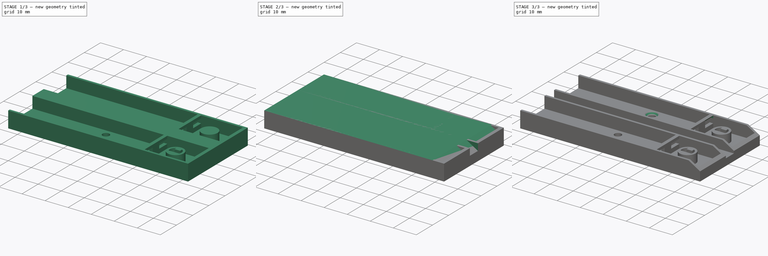
[diagram: build sequence overview — one tinted view per stage of 3, left to right]
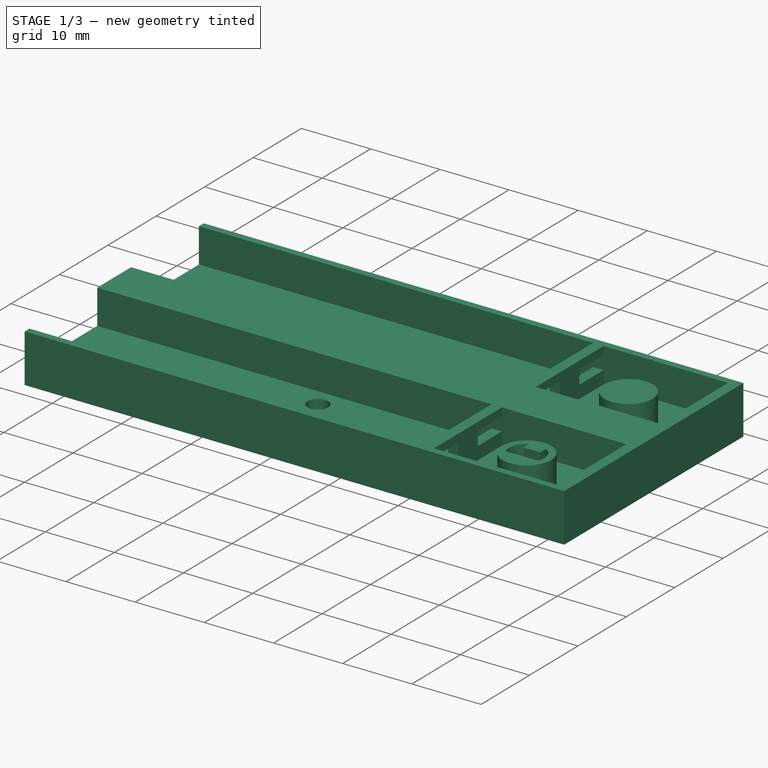
[diagram: stage 1 of 3 — iso view after this stage's code; geometry added in this stage tinted green]
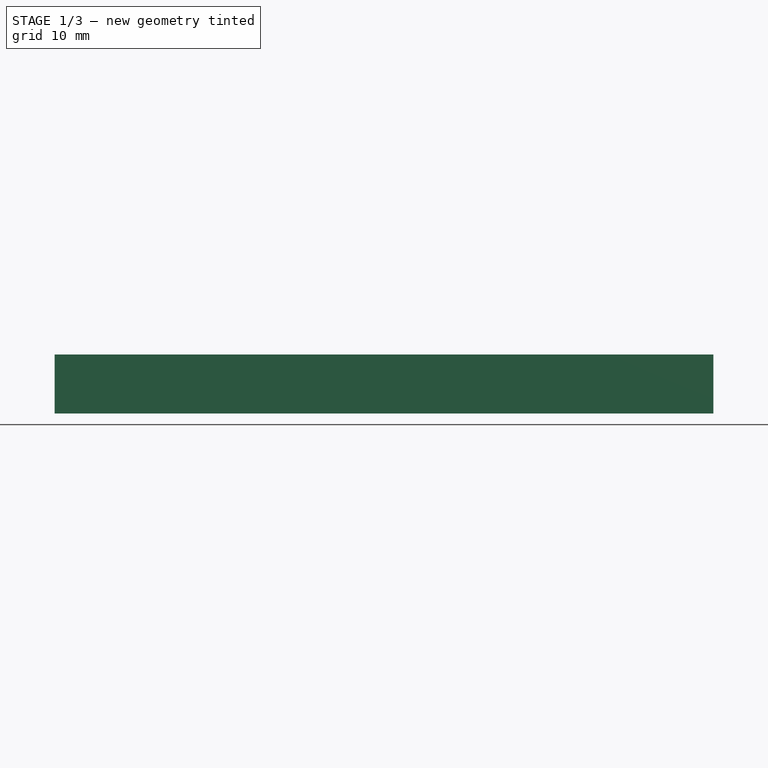
[diagram: stage 1 of 3 — front view after this stage's code; geometry added in this stage tinted green]
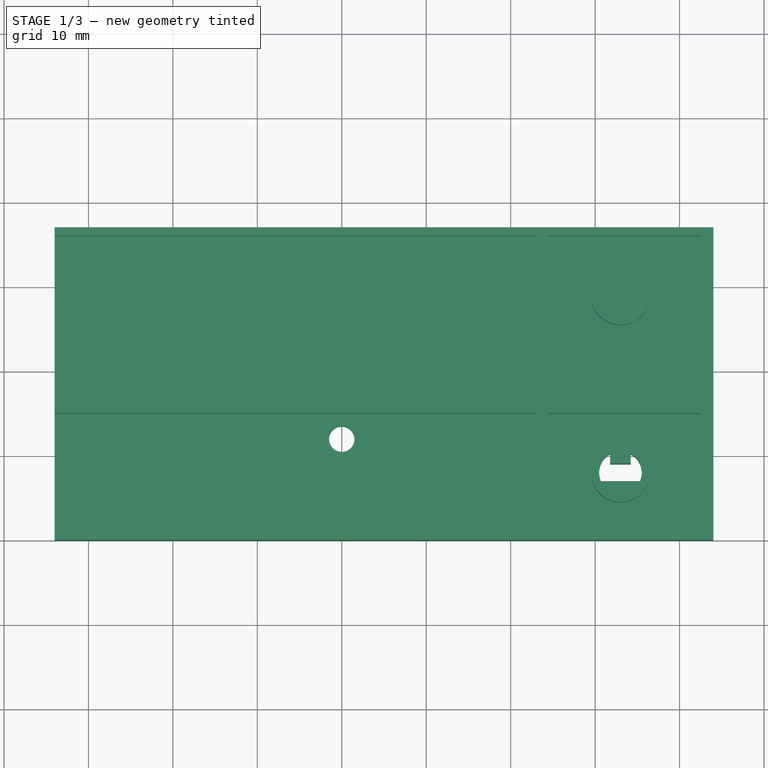
[diagram: stage 1 of 3 — top view after this stage's code; geometry added in this stage tinted green]
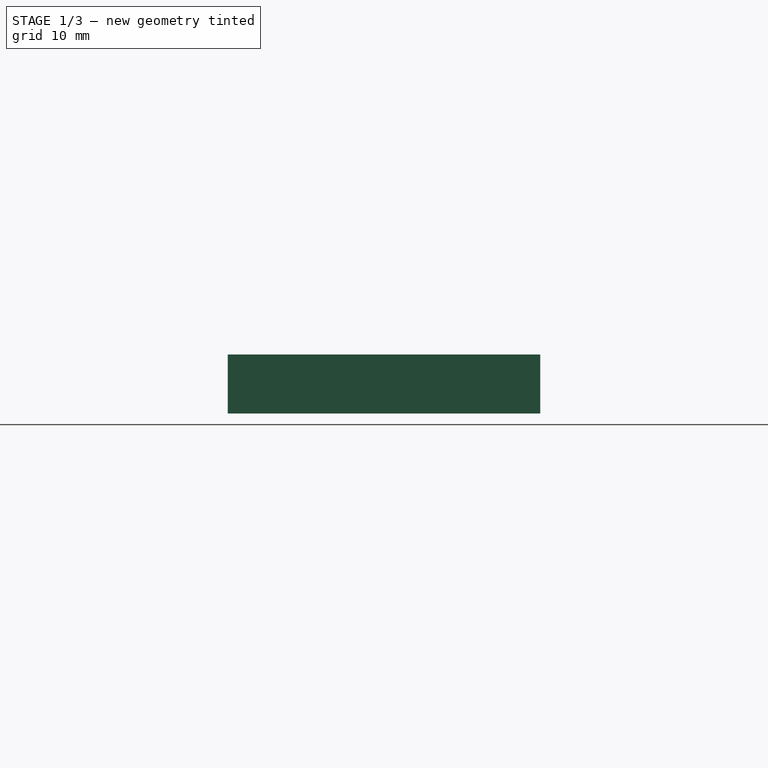
[diagram: stage 1 of 3 — right view after this stage's code; geometry added in this stage tinted green]
FCSTD DOCUMENT  (FreeCAD 0.18R14555 (Git shallow))
Label: terrameo_boutons
License: All rights reserved
LicenseURL: http://en.wikipedia.org/wiki/All_rights_reserved
objects: Sketcher::SketchObject×7, PartDesign::Pocket×5, PartDesign::Pad×2, Part::Chamfer×2, PartDesign::LinearPattern×2, PartDesign::Body×1, Part::MultiCommon×1
note: 27 computed .brp shape members not serialized (recipe doc carries the construction recipe); baked Part::Feature solids carry a one-line shape summary decoded from their .brp

FEATURE [Sketcher::SketchObject] Sketch006  label="clip_bt-Sketch"
  MapMode = 5
  Placement = pos=(0,0,2) rot=(0,0,1;0rad)
  Support = -> [Pocket]
  sketch-geometry (1):
    g0: Circle CenterX=33 CenterY=8 CenterZ=0 NormalX=0 NormalY=0 NormalZ=1 AngleXU=0 Radius=3.5
  constraints (3):
    c: Radius(g0) = 3.5
    c: DistanceY(g-1,g0) = 8
    c: DistanceX(g-1,g0) = 33
FEATURE [PartDesign::Pad] Pad001  label="clip_bt_Pad"
  BaseFeature = -> Pocket
  Length = 4
  Length2 = 100
  Profile = -> Sketch006
  Type = 0
FEATURE [PartDesign::Body] Body
  Group = -> [Sketch,Pad,Sketch002,Pocket,Pad001,Sketch003,Pocket004,Pocket001,Sketch004,Pocket002,LinearPattern001,Sketch005,Sketch006,Sketch007,LinearPattern,Pocket003]
  Origin = -> Origin
  Tip = -> LinearPattern
FEATURE [PartDesign::Pocket] Pocket001  label="trou_vis_bt_Pocket"
  BaseFeature = -> Pocket004
  Length = 8
  Length2 = 100
  Profile = -> Sketch003
  Type = 1
FEATURE [Sketcher::SketchObject] Sketch004  label="clip_vitre_sketch"
  MapMode = 5
  Placement = pos=(23,0,0) rot=(0.57735,-0.57735,-0.57735;2.0944rad)
  Support = -> [Pocket001]
  sketch-geometry (8):
    g0: LineSegment StartX=-15 StartY=5.85297 StartZ=0 EndX=-10 EndY=5.85297 EndZ=0
    g1: LineSegment StartX=-10 StartY=5.85297 StartZ=0 EndX=-10 EndY=3.85297 EndZ=0
    g2: LineSegment StartX=-10 StartY=3.85297 StartZ=0 EndX=-15 EndY=3.85297 EndZ=0
    g3: LineSegment StartX=-15 StartY=3.85297 StartZ=0 EndX=-15 EndY=5.85297 EndZ=0
    g4: LineSegment StartX=-6 StartY=5.85297 StartZ=0 EndX=-1 EndY=5.85297 EndZ=0
    g5: LineSegment StartX=-1 StartY=5.85297 StartZ=0 EndX=-1 EndY=3.85297 EndZ=0
    g6: LineSegment StartX=-1 StartY=3.85297 StartZ=0 EndX=-6 EndY=3.85297 EndZ=0
    g7: LineSegment StartX=-6 StartY=3.85297 StartZ=0 EndX=-6 EndY=5.85297 EndZ=0
  constraints (23):
    c: Coincident(g0,g1)
    c: Coincident(g1,g2)
    c: Coincident(g2,g3)
    c: Coincident(g3,g0)
    c: Horizontal(g0)
    c: Horizontal(g2)
    c: Vertical(g1)
    c: Vertical(g3)
    c: Coincident(g4,g5)
    c: Coincident(g5,g6)
    c: Coincident(g6,g7)
    c: Coincident(g7,g4)
    c: Horizontal(g4)
    c: Horizontal(g6)
    c: Vertical(g5)
    c: Vertical(g7)
    c: DistanceY(g5,g4) = 2
    c: Horizontal(g4,g0)
    c: Horizontal(g6,g1)
    c: DistanceX(g0,g4) = 4
    c: DistanceX(g4,g-1) = 1
    c: DistanceX(g2,g1) = 5
    c: DistanceX(g6,g6) = 5
FEATURE [PartDesign::Pocket] Pocket002  label="clip_vitre_Pocket"
  BaseFeature = -> Pocket001
  Length = 2
  Length2 = 100
  Profile = -> Sketch004
  Type = 0
FEATURE [PartDesign::LinearPattern] LinearPattern001  label="LinearPattern"
  BaseFeature = -> Pocket002
  Direction = -> Y_Axis
  Length = 21
  Occurrences = 2
  Originals = -> [Pocket,Pocket002,Pad001,Pocket004]
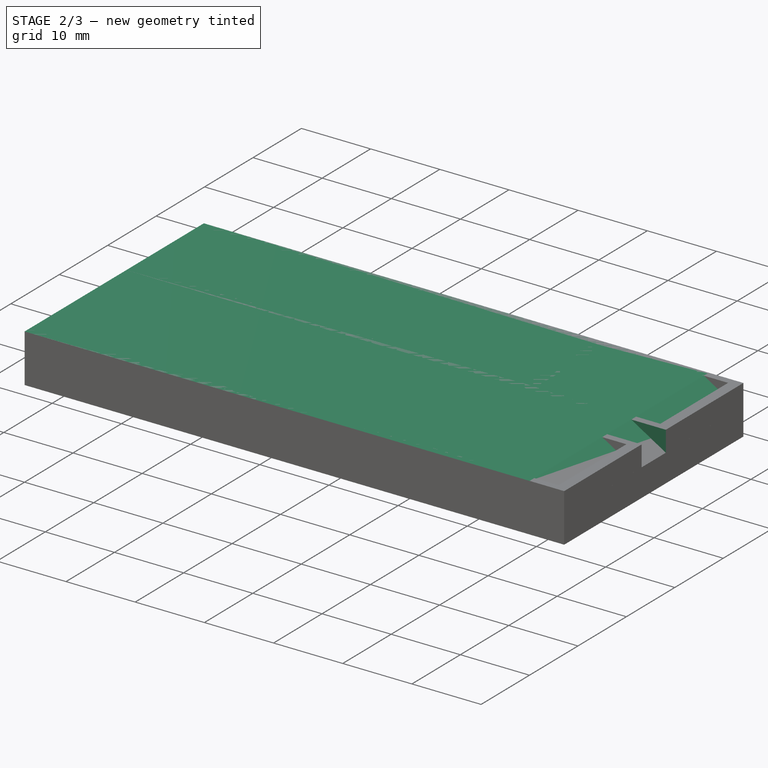
[diagram: stage 2 of 3 — iso view after this stage's code; geometry added in this stage tinted green]
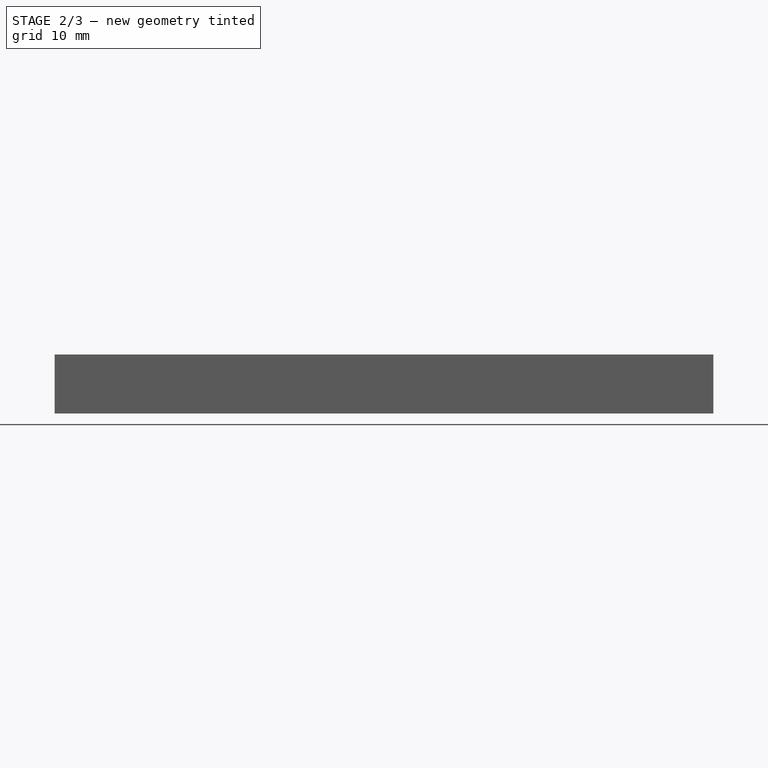
[diagram: stage 2 of 3 — front view after this stage's code; geometry added in this stage tinted green]
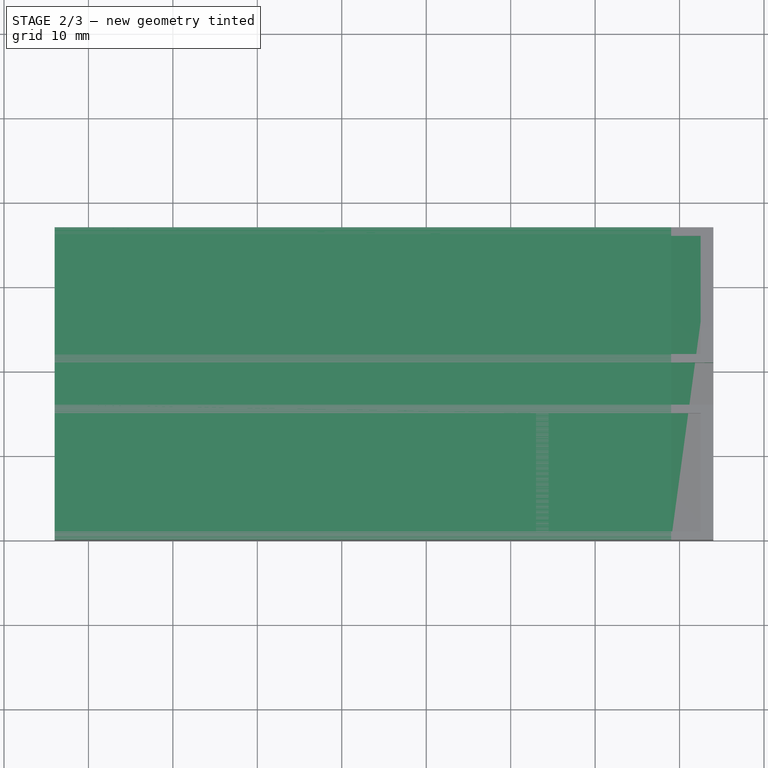
[diagram: stage 2 of 3 — top view after this stage's code; geometry added in this stage tinted green]
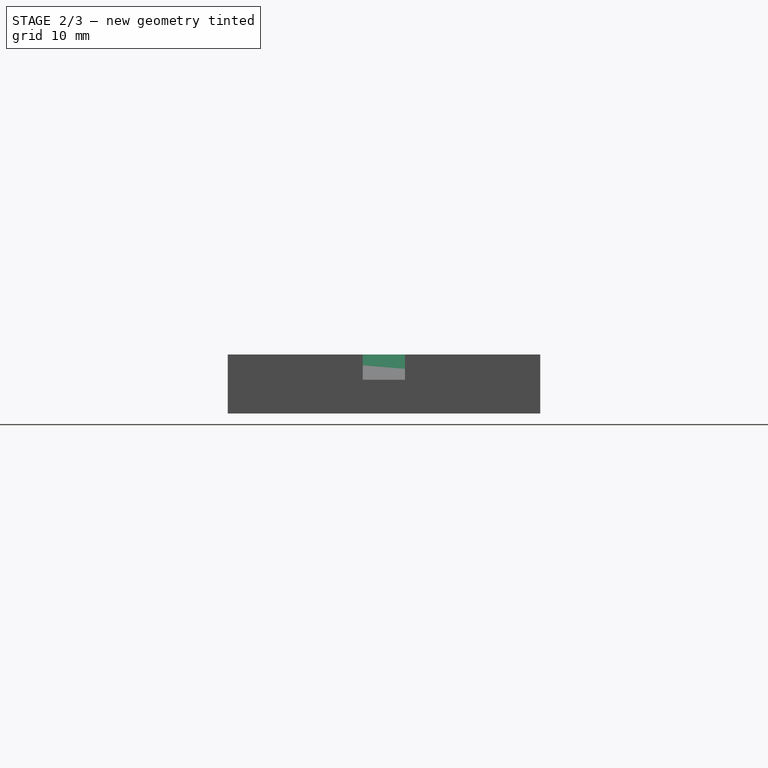
[diagram: stage 2 of 3 — right view after this stage's code; geometry added in this stage tinted green]
FEATURE [Sketcher::SketchObject] Sketch  label="base_Sketch"
  MapMode = 5
  Support = -> [XY_Plane]
  sketch-geometry (4):
    g0: LineSegment StartX=-34 StartY=37.0104 StartZ=0 EndX=44 EndY=37.0104 EndZ=0
    g1: LineSegment StartX=44 StartY=37.0104 StartZ=0 EndX=44 EndY=0.0104099 EndZ=0
    g2: LineSegment StartX=44 StartY=0.0104099 StartZ=0 EndX=-34 EndY=0.0104099 EndZ=0
    g3: LineSegment StartX=-34 StartY=0.0104099 StartZ=0 EndX=-34 EndY=37.0104 EndZ=0
  constraints (11):
    c: Coincident(g0,g1)
    c: Coincident(g1,g2)
    c: Coincident(g2,g3)
    c: Coincident(g3,g0)
    c: Horizontal(g0)
    c: Horizontal(g2)
    c: Vertical(g1)
    c: Vertical(g3)
    c: DistanceY(g1,g0) = 37
    c: DistanceX(g2,g1) = 78
    c: DistanceX(g-1,g1) = 44
FEATURE [PartDesign::Pad] Pad  label="base_Pad"
  Length = 7
  Length2 = 100
  Profile = -> Sketch
  Type = 0
FEATURE [Sketcher::SketchObject] Sketch002  label="emplacement_Sketch"
  MapMode = 5
  Placement = pos=(0,0,7) rot=(0,0,1;0rad)
  Support = -> [Pad]
  sketch-geometry (8):
    g0: LineSegment StartX=-34 StartY=15 StartZ=0 EndX=23 EndY=15 EndZ=0
    g1: LineSegment StartX=23 StartY=15 StartZ=0 EndX=23 EndY=1 EndZ=0
    g2: LineSegment StartX=23 StartY=1 StartZ=0 EndX=-34 EndY=1 EndZ=0
    g3: LineSegment StartX=-34 StartY=1 StartZ=0 EndX=-34 EndY=15 EndZ=0
    g4: LineSegment StartX=24.5 StartY=15 StartZ=0 EndX=42.5 EndY=15 EndZ=0
    g5: LineSegment StartX=42.5 StartY=15 StartZ=0 EndX=42.5 EndY=1 EndZ=0
    g6: LineSegment StartX=42.5 StartY=1 StartZ=0 EndX=24.5 EndY=1 EndZ=0
    g7: LineSegment StartX=24.5 StartY=1 StartZ=0 EndX=24.5 EndY=15 EndZ=0
  constraints (24):
    c: Coincident(g0,g1)
    c: Coincident(g1,g2)
    c: Coincident(g2,g3)
    c: Coincident(g3,g0)
    c: Horizontal(g0)
    c: Horizontal(g2)
    c: Vertical(g1)
    c: Vertical(g3)
    c: Coincident(g4,g5)
    c: Coincident(g5,g6)
    c: Coincident(g6,g7)
    c: Coincident(g7,g4)
    c: Horizontal(g4)
    c: Horizontal(g6)
    c: Vertical(g5)
    c: Vertical(g7)
    c: DistanceY(g5,g4) = 14
    c: Horizontal(g0,g4)
    c: Horizontal(g1,g6)
    c: DistanceX(g6,g5) = 18
    c: DistanceX(g2,g2) = 57
    c: DistanceX(g1,g6) = 1.5
    c: DistanceX(g-1,g4) = 42.5
    c: DistanceY(g-1,g5) = 1
FEATURE [PartDesign::Pocket] Pocket  label="emplacement_Pocket"
  BaseFeature = -> Pad
  Length = 5
  Length2 = 100
  Profile = -> Sketch002
  Type = 0
FEATURE [Sketcher::SketchObject] Sketch003  label="trou_vis_bt_Sketch"
  MapMode = 5
  Placement = pos=(0,0,0) rot=(1,0,0;3.14159rad)
  Support = -> [Pocket]
  sketch-geometry (7):
    g0: Circle CenterX=0 CenterY=-12 CenterZ=0 NormalX=0 NormalY=0 NormalZ=1 AngleXU=0 Radius=1.5
    g1: ArcOfCircle CenterX=33 CenterY=-8 CenterZ=0 NormalX=0 NormalY=0 NormalZ=1 AngleXU=0 Radius=2.53 StartAngle=2.7223 EndAngle=4.20921
    g2: ArcOfCircle CenterX=33 CenterY=-8 CenterZ=0 NormalX=0 NormalY=0 NormalZ=1 AngleXU=0 Radius=2.53 StartAngle=5.21557 EndAngle=6.70248
    g3: LineSegment StartX=31.78 StartY=-9.03 StartZ=0 EndX=31.78 EndY=-10.2164 EndZ=0
    g4: LineSegment StartX=34.22 StartY=-10.2164 StartZ=0 EndX=34.22 EndY=-9.03 EndZ=0
    g5: LineSegment StartX=31.78 StartY=-9.03 StartZ=0 EndX=34.22 EndY=-9.03 EndZ=0
    g6: LineSegment StartX=30.6892 StartY=-6.97 StartZ=0 EndX=35.3108 EndY=-6.97 EndZ=0
  constraints (22):
    c: PointOnObject(g0,g-2)
    c: Radius(g0) = 1.5
    c: Coincident(g2,g1)
    c: Radius(g2) = 2.53
    c: Equal(g2,g1)
    c: Vertical(g3)
    c: Vertical(g4)
    c: DistanceY(g0,g-1) = 12
    c: DistanceX(g0,g1) = 33
    c: DistanceY(g1,g-1) = 8
    c: Coincident(g2,g4)
    c: Coincident(g3,g1)
    c: Horizontal(g2,g1)
    c: Coincident(g5,g3)
    c: Coincident(g5,g4)
    c: Horizontal(g5)
    c: Coincident(g6,g1)
    c: Coincident(g6,g2)
    c: Horizontal(g6)
    c: DistanceY(g4,g2) = 2.06
    c: DistanceY(g3,g1) = 1.03
    c: DistanceX(g5,g5) = 2.44
FEATURE [Part::Chamfer] Chamfer
  Base = -> Pad
  Edges = 1 edges: [Edge7 r1=3 r2=5]
FEATURE [Sketcher::SketchObject] Sketch005  label="Millieu_Sketch"
  MapMode = 5
  Placement = pos=(0,0,7) rot=(0,0,1;0rad)
  Support = -> [LinearPattern001]
  sketch-geometry (4):
    g0: LineSegment StartX=-36.5824 StartY=21 StartZ=0 EndX=44.5201 EndY=21 EndZ=0
    g1: LineSegment StartX=44.5201 StartY=21 StartZ=0 EndX=44.5201 EndY=16 EndZ=0
    g2: LineSegment StartX=44.5201 StartY=16 StartZ=0 EndX=-36.5824 EndY=16 EndZ=0
    g3: LineSegment StartX=-36.5824 StartY=16 StartZ=0 EndX=-36.5824 EndY=21 EndZ=0
  constraints (10):
    c: Coincident(g0,g1)
    c: Coincident(g1,g2)
    c: Coincident(g2,g3)
    c: Coincident(g3,g0)
    c: Horizontal(g0)
    c: Horizontal(g2)
    c: Vertical(g1)
    c: Vertical(g3)
    c: DistanceY(g3,g3) = 5
    c: DistanceY(g-1,g2) = 16
FEATURE [PartDesign::Pocket] Pocket003  label="millieu_Pocket"
  BaseFeature = -> LinearPattern
  Length = 4
  Length2 = 100
  Profile = -> Sketch005
  Type = 0
FEATURE [Sketcher::SketchObject] Sketch007  label="clip_bt_Sketch"
  MapMode = 5
  Placement = pos=(0,0,0) rot=(1,0,0;3.14159rad)
  Support = -> [Pocket001]
  sketch-geometry (4):
    g0: LineSegment StartX=31.6 StartY=-6 StartZ=0 EndX=34.4 EndY=-6 EndZ=0
    g1: LineSegment StartX=34.4 StartY=-6 StartZ=0 EndX=34.4 EndY=-7 EndZ=0
    g2: LineSegment StartX=34.4 StartY=-7 StartZ=0 EndX=31.6 EndY=-7 EndZ=0
    g3: LineSegment StartX=31.6 StartY=-7 StartZ=0 EndX=31.6 EndY=-6 EndZ=0
  constraints (12):
    c: Coincident(g0,g1)
    c: Coincident(g1,g2)
    c: Coincident(g2,g3)
    c: Coincident(g3,g0)
    c: Horizontal(g0)
    c: Horizontal(g2)
    c: Vertical(g1)
    c: Vertical(g3)
    c: DistanceY(g1,g0) = 1
    c: DistanceX(g0,g0) = 2.8
    c: DistanceY(g0,g-1) = 6
    c: DistanceX(g-1,g0) = 31.6
FEATURE [PartDesign::Pocket] Pocket004  label="clip_bt_Pocket"
  BaseFeature = -> Pad001
  Length = 5
  Length2 = 100
  Profile = -> Sketch007
  Type = 0
FEATURE [PartDesign::LinearPattern] LinearPattern  label="LinearPattern001"
  BaseFeature = -> LinearPattern001
  Direction = -> Y_Axis
  Length = 21
  Occurrences = 2
  Originals = -> [Pocket001]
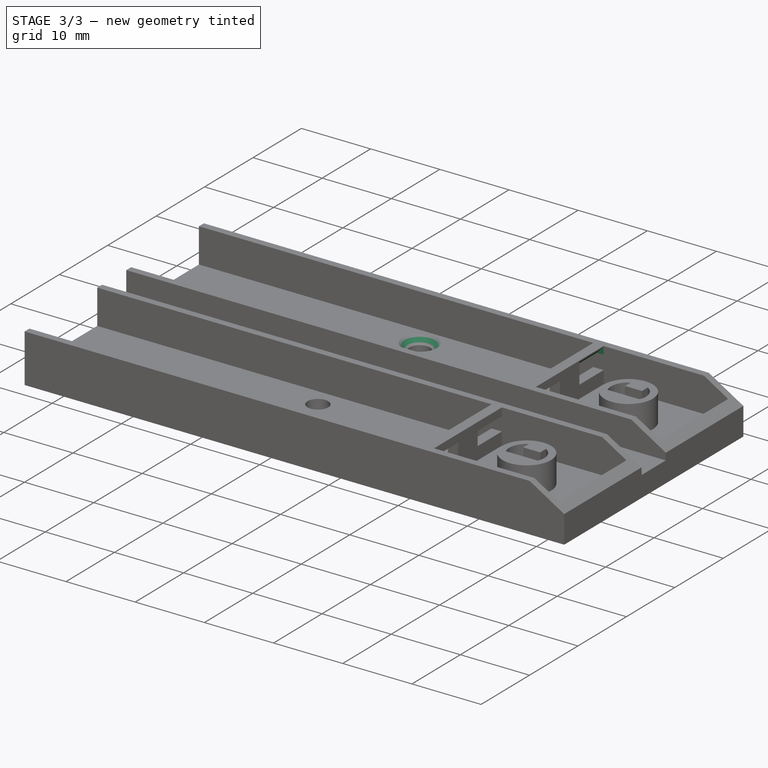
[diagram: stage 3 of 3 — iso view after this stage's code; geometry added in this stage tinted green]
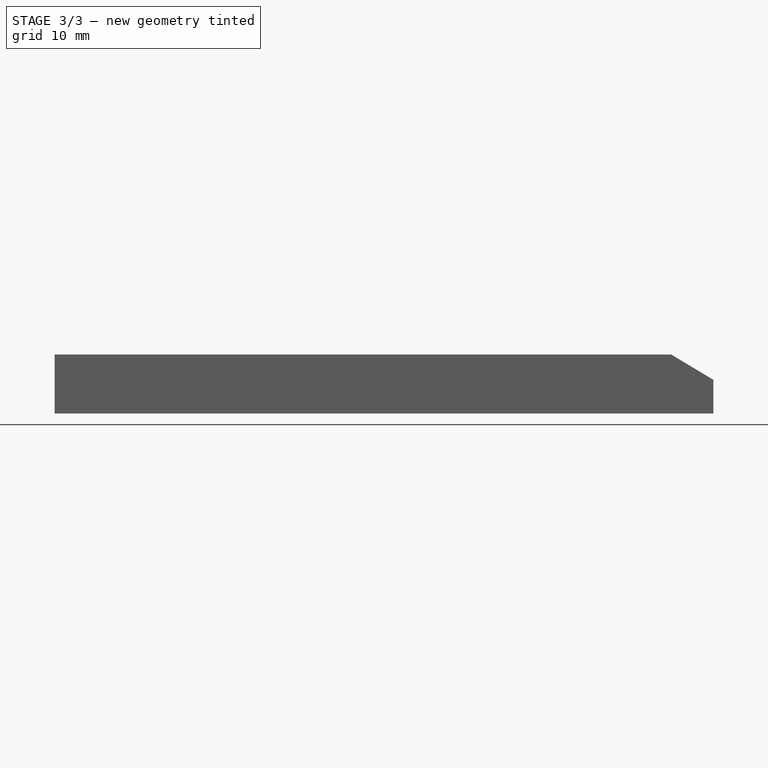
[diagram: stage 3 of 3 — front view after this stage's code; geometry added in this stage tinted green]
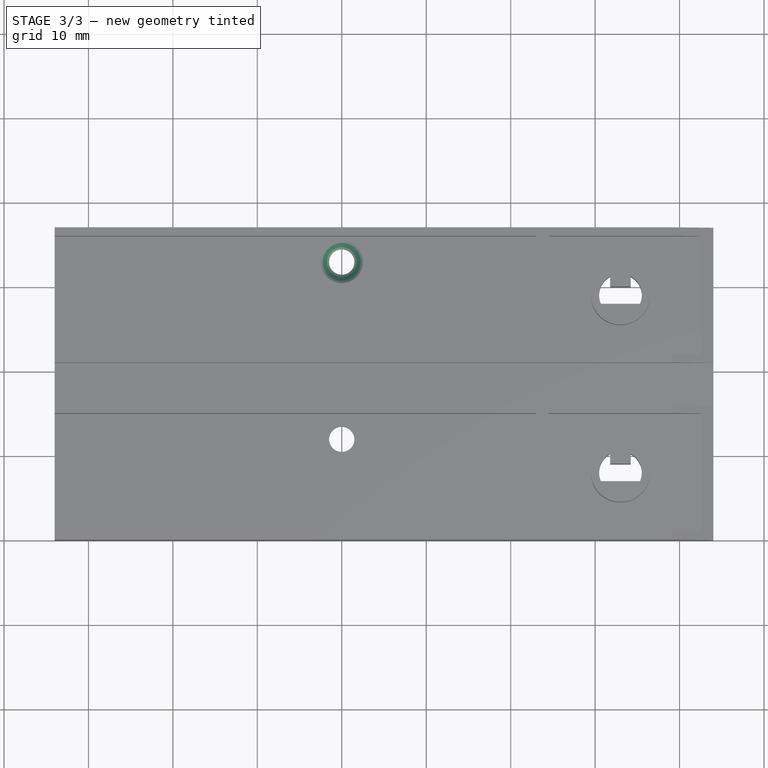
[diagram: stage 3 of 3 — top view after this stage's code; geometry added in this stage tinted green]
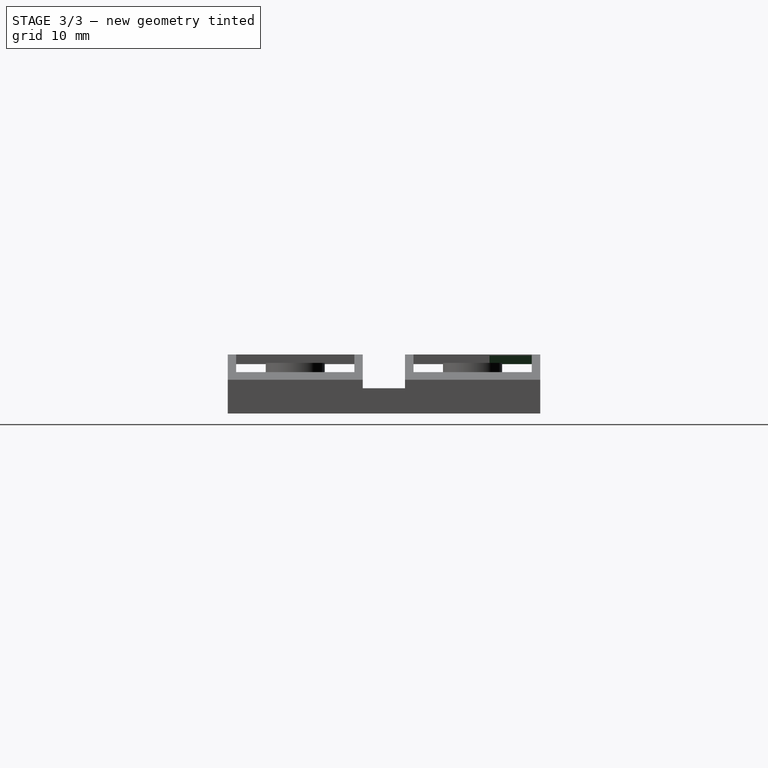
[diagram: stage 3 of 3 — right view after this stage's code; geometry added in this stage tinted green]
FEATURE [Part::MultiCommon] Common
  Shapes = -> [Pocket003,Chamfer]
FEATURE [Part::Chamfer] Chamfer001
  Base = -> Common
  Edges = 2 edges r=1: [Edge109,Edge134]
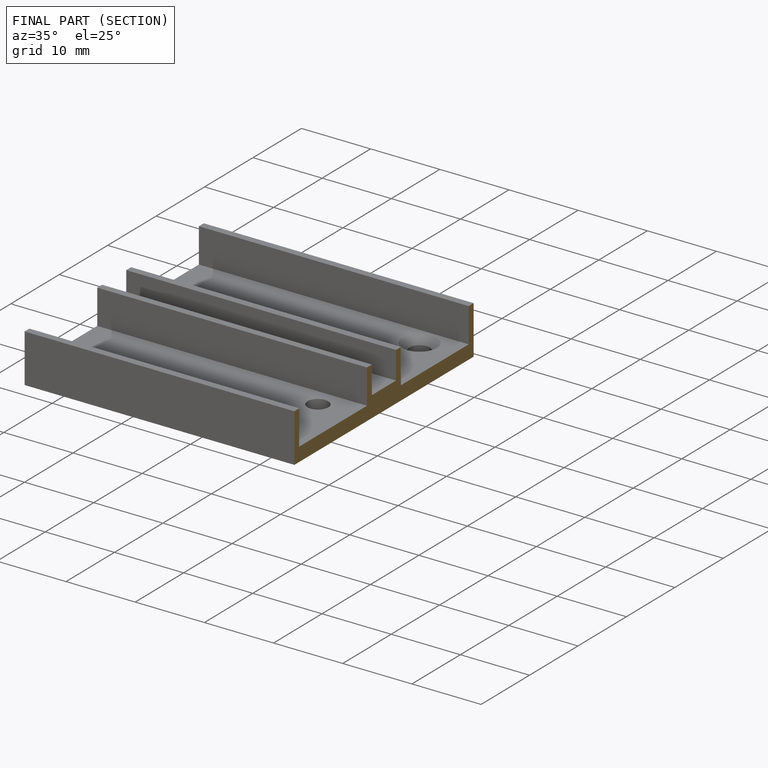
[diagram: finished part — half-section view (interior)]
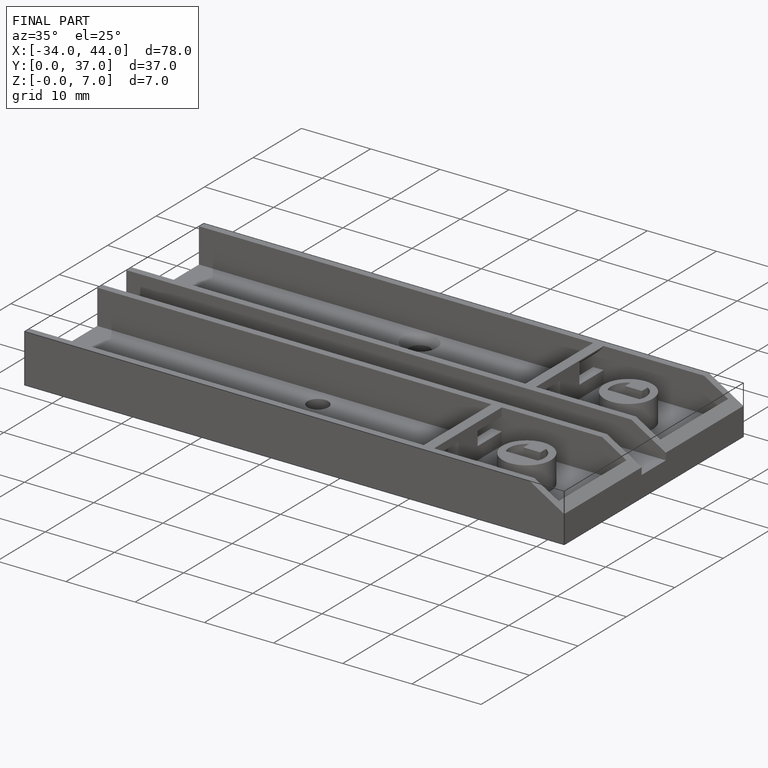
[diagram: finished part — iso view with bounding-box wireframe]
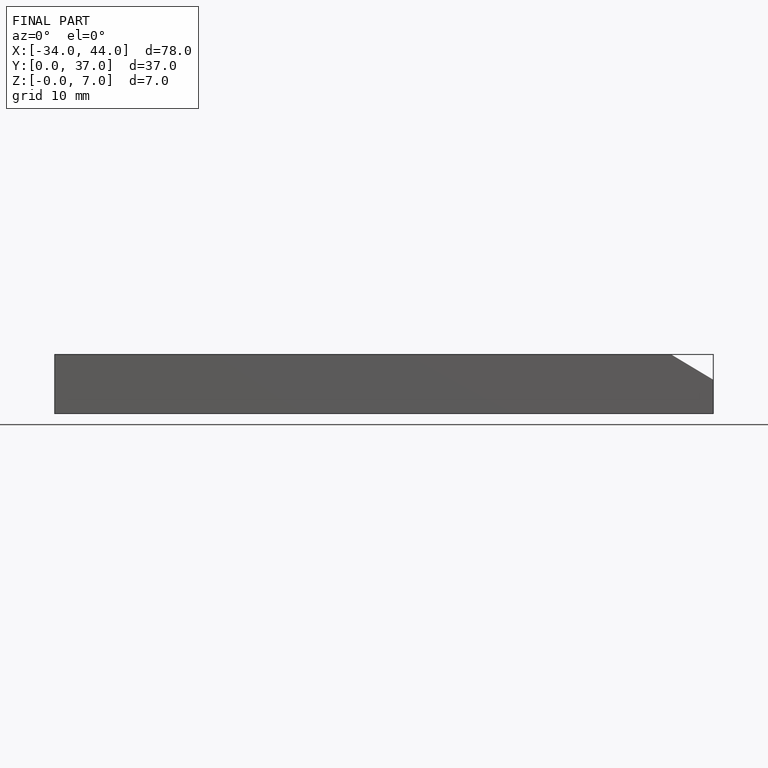
[diagram: finished part — front view with bounding-box wireframe]
